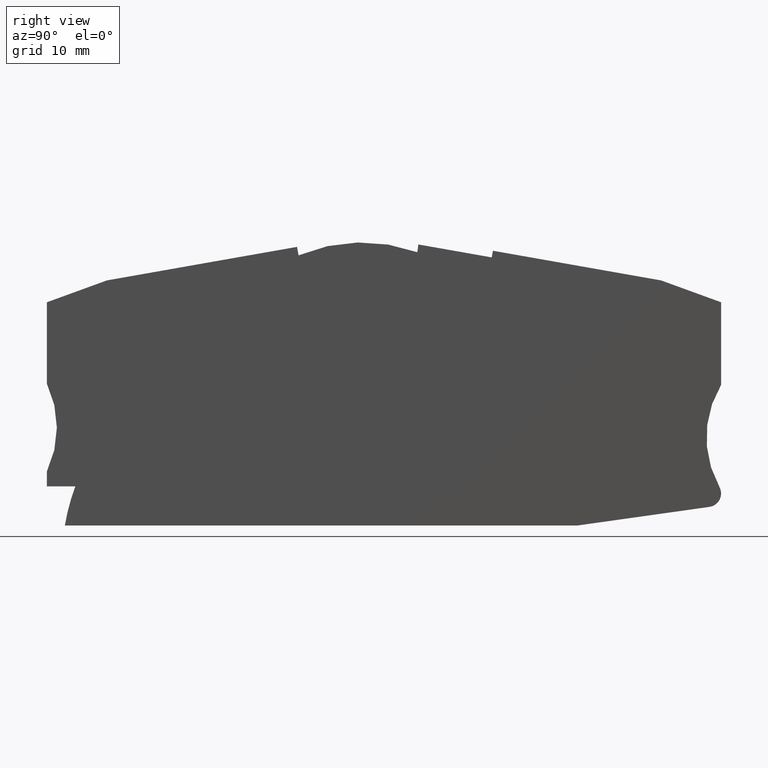
[diagram: clean part render]
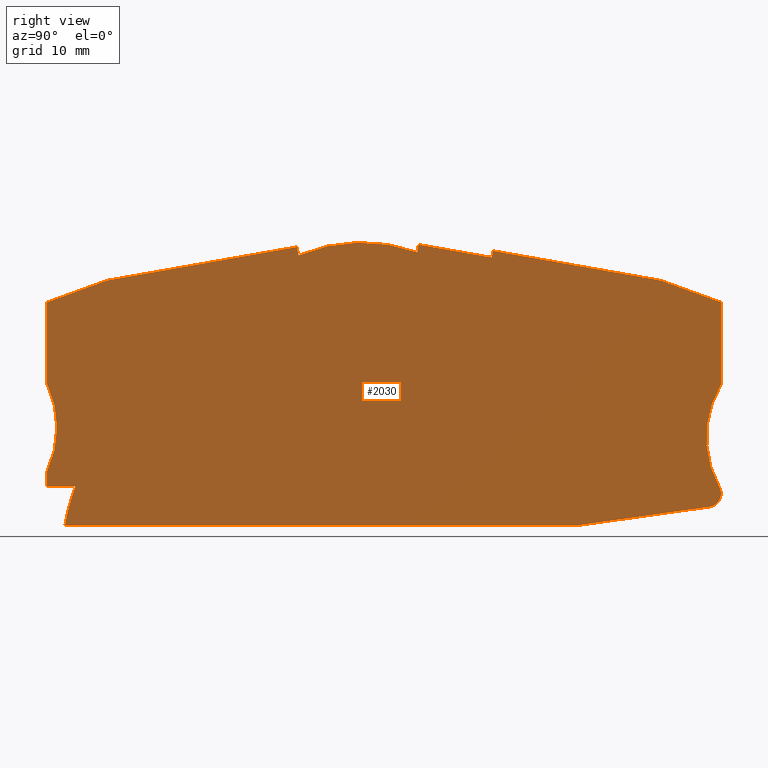
[diagram: same view with one face highlighted and labeled with its STEP entity id]
A machine part, right view. The second image highlights one B-rep face of the part: STEP entity #2030.
In plain terms, the highlighted planar face has unit normal (-1, -0, -0).
Its self-contained STEP definition (entity closure, byte-faithful):
#200=CARTESIAN_POINT('',(-13.3272534839325,-73.9280653286887,
125.749999999974));
#210=VERTEX_POINT('',#200);
#240=CARTESIAN_POINT('',(51.6290292403111,-73.9280653286887,
125.750000000013));
#250=DIRECTION('',(-1.,0.,-6.03432729529515E-13));
#260=VECTOR('',#250,1.);
#270=LINE('',#240,#260);
#280=CARTESIAN_POINT('',(62.5276099617414,-73.9280653286887,
125.75000000002));
#290=VERTEX_POINT('',#280);
#300=EDGE_CURVE('',#290,#210,#270,.T.);
#480=CARTESIAN_POINT('',(60.1205879999577,-50.3933440000951,
125.750000000036));
#490=DIRECTION('',(6.03432729529515E-13,7.59071191710367E-13,-1.));
#500=DIRECTION('',(-1.,0.,-6.03432729529515E-13));
#510=AXIS2_PLACEMENT_3D('',#480,#490,#500);
#520=PLANE('',#510);
#530=CARTESIAN_POINT('',(51.6290292403111,-34.5553054080874,
125.750000000043));
#540=DIRECTION('',(0.984807753012213,-0.173648177666904,
4.62453901302037E-13));
#550=VECTOR('',#540,1.);
#560=LINE('',#530,#550);
#570=CARTESIAN_POINT('',(38.99381641264,-32.3273764795756,
125.750000000037));
#580=VERTEX_POINT('',#570);
#590=CARTESIAN_POINT('',(49.86000735476,-34.243379120201,
125.750000000042));
#600=VERTEX_POINT('',#590);
#610=EDGE_CURVE('',#580,#600,#560,.T.);
#620=ORIENTED_EDGE('',*,*,#610,.F.);
#630=CARTESIAN_POINT('',(42.8893596173484,-73.7758869043069,
125.750000000008));
#640=DIRECTION('',(0.173648177667083,0.984807753012181,
8.5232418851204E-13));
#650=VECTOR('',#640,1.);
#660=LINE('',#630,#650);
#670=CARTESIAN_POINT('',(50.0336555324318,-33.2585713671621,
125.750000000043));
#680=VERTEX_POINT('',#670);
#690=EDGE_CURVE('',#600,#680,#660,.T.);
#700=ORIENTED_EDGE('',*,*,#690,.F.);
#710=CARTESIAN_POINT('',(51.6290292403111,-33.539878796174,
125.750000000044));
#720=DIRECTION('',(-0.984807753012221,0.173648177666859,
-4.62453901302076E-13));
#730=VECTOR('',#720,1.);
#740=LINE('',#710,#730);
#750=CARTESIAN_POINT('',(74.9146995439338,-37.6457707345828,
125.750000000055));
#760=VERTEX_POINT('',#750);
#770=EDGE_CURVE('',#760,#680,#740,.T.);
#780=ORIENTED_EDGE('',*,*,#770,.T.);
#790=CARTESIAN_POINT('',(51.6290292403111,-29.1704798592096,
125.750000000047));
#800=DIRECTION('',(-0.939692620786971,0.34202014332275,
-3.07423645299275E-13));
#810=VECTOR('',#800,1.);
#820=LINE('',#790,#810);
#830=CARTESIAN_POINT('',(83.8152812045608,-40.8853175266754,
125.750000000057));
#840=VERTEX_POINT('',#830);
#850=EDGE_CURVE('',#840,#760,#820,.T.);
#860=ORIENTED_EDGE('',*,*,#850,.T.);
#870=CARTESIAN_POINT('',(83.8152812046628,-73.7758869043069,
125.750000000033));
#880=DIRECTION('',(-3.1022961977106E-12,1.,7.59071191708495E-13));
#890=VECTOR('',#880,1.);
#900=LINE('',#870,#890);
#910=CARTESIAN_POINT('',(83.8152812045986,-53.0960397776546,
125.750000000048));
#920=VERTEX_POINT('',#910);
#930=EDGE_CURVE('',#920,#840,#900,.T.);
#940=ORIENTED_EDGE('',*,*,#930,.T.);
#950=CARTESIAN_POINT('',(96.6417739742854,-60.8729982595484,
125.75000000005));
#960=DIRECTION('',(-6.03432729529515E-13,-7.59071191710367E-13,1.));
#970=DIRECTION('',(1.,6.20886675406309E-12,6.03432729534228E-13));
#980=AXIS2_PLACEMENT_3D('',#950,#960,#970);
#990=CIRCLE('',#980,14.9999999999975);
#1000=CARTESIAN_POINT('',(83.5595744610592,-68.2116667965563,
125.750000000037));
#1010=VERTEX_POINT('',#1000);
#1020=EDGE_CURVE('',#920,#1010,#990,.T.);
#1030=ORIENTED_EDGE('',*,*,#1020,.F.);
#1040=CARTESIAN_POINT('',(81.8152811926287,-69.1901559348242,
125.750000000035));
#1050=DIRECTION('',(-6.03432729529515E-13,-7.59071191710367E-13,1.));
#1060=DIRECTION('',(1.,-1.86201136935918E-24,6.03432729529515E-13));
#1070=AXIS2_PLACEMENT_3D('',#1040,#1050,#1060);
#1080=CIRCLE('',#1070,2.);
#1090=CARTESIAN_POINT('',(82.0943766377503,-71.1705866285149,
125.750000000033));
#1100=VERTEX_POINT('',#1090);
#1110=EDGE_CURVE('',#1100,#1010,#1080,.T.);
#1120=ORIENTED_EDGE('',*,*,#1110,.T.);
#1130=CARTESIAN_POINT('',(51.6290292403111,-75.4639656999217,
125.750000000012));
#1140=DIRECTION('',(0.990215346845371,0.139547722560786,
7.03455005633601E-13));
#1150=VECTOR('',#1140,1.);
#1160=LINE('',#1130,#1150);
#1170=EDGE_CURVE('',#290,#1100,#1160,.T.);
#1180=ORIENTED_EDGE('',*,*,#1170,.T.);
#1190=ORIENTED_EDGE('',*,*,#300,.F.);
#1200=CARTESIAN_POINT('',(18.3152811806622,-79.3280653286815,
125.749999999989));
#1210=DIRECTION('',(-6.03432729529515E-13,-7.59071191710367E-13,1.));
#1220=DIRECTION('',(1.,-4.27713420242861E-14,6.03432729529483E-13));
#1230=AXIS2_PLACEMENT_3D('',#1200,#1210,#1220);
#1240=CIRCLE('',#1230,32.1);
#1250=CARTESIAN_POINT('',(-11.7674381113161,-68.1280653286799,
125.749999999979));
#1260=VERTEX_POINT('',#1250);
#1270=EDGE_CURVE('',#1260,#210,#1240,.T.);
#1280=ORIENTED_EDGE('',*,*,#1270,.T.);
#1290=CARTESIAN_POINT('',(51.6290292403111,-68.128065328684,
125.750000000017));
#1300=DIRECTION('',(1.,-6.41431352477815E-14,6.03432729529466E-13));
#1310=VECTOR('',#1300,1.);
#1320=LINE('',#1290,#1310);
#1330=CARTESIAN_POINT('',(-15.9847188194089,-68.1280653286797,
125.749999999977));
#1340=VERTEX_POINT('',#1330);
#1350=EDGE_CURVE('',#1340,#1260,#1320,.T.);
#1360=ORIENTED_EDGE('',*,*,#1350,.T.);
#1370=CARTESIAN_POINT('',(-15.9847188194265,-73.7758869043069,
125.749999999972));
#1380=DIRECTION('',(-3.10598768926643E-12,-1.,-7.59071191712242E-13));
#1390=VECTOR('',#1380,1.);
#1400=LINE('',#1370,#1390);
#1410=CARTESIAN_POINT('',(-15.9847188194021,-65.928065328636,
125.749999999978));
#1420=VERTEX_POINT('',#1410);
#1430=EDGE_CURVE('',#1420,#1340,#1400,.T.);
#1440=ORIENTED_EDGE('',*,*,#1430,.T.);
#1450=CARTESIAN_POINT('',(-29.503224653977,-59.4280653285926,
125.749999999975));
#1460=DIRECTION('',(-6.03432729529515E-13,-7.59071191710367E-13,1.));
#1470=DIRECTION('',(1.,-3.108041601862E-12,6.03432729527156E-13));
#1480=AXIS2_PLACEMENT_3D('',#1450,#1460,#1470);
#1490=CIRCLE('',#1480,15.);
#1500=CARTESIAN_POINT('',(-15.9847188194686,-52.928065328411,
125.749999999988));
#1510=VERTEX_POINT('',#1500);
#1520=EDGE_CURVE('',#1420,#1510,#1490,.T.);
#1530=ORIENTED_EDGE('',*,*,#1520,.F.);
#1540=CARTESIAN_POINT('',(-15.9847188195332,-73.7758869043069,
125.749999999972));
#1550=DIRECTION('',(-3.10232395328517E-12,-1.,-7.5907119171224E-13));
#1560=VECTOR('',#1550,1.);
#1570=LINE('',#1540,#1560);
#1580=CARTESIAN_POINT('',(-15.9847188194312,-40.8853175266537,
125.749999999997));
#1590=VERTEX_POINT('',#1580);
#1600=EDGE_CURVE('',#1590,#1510,#1570,.T.);
#1610=ORIENTED_EDGE('',*,*,#1600,.T.);
#1620=CARTESIAN_POINT('',(51.6290292403111,-16.2759258059711,
125.750000000057));
#1630=DIRECTION('',(-0.939692620786971,-0.34202014332275,
-8.26658920861176E-13));
#1640=VECTOR('',#1630,1.);
#1650=LINE('',#1620,#1640);
#1660=CARTESIAN_POINT('',(-7.08413715914052,-37.6457707346835,
125.750000000005));
#1670=VERTEX_POINT('',#1660);
#1680=EDGE_CURVE('',#1670,#1590,#1650,.T.);
#1690=ORIENTED_EDGE('',*,*,#1680,.T.);
#1700=CARTESIAN_POINT('',(51.6290292403111,-27.2930553756389,
125.750000000048));
#1710=DIRECTION('',(-0.984807753012221,-0.173648177666859,
-7.26076559621909E-13));
#1720=VECTOR('',#1710,1.);
#1730=LINE('',#1700,#1720);
#1740=CARTESIAN_POINT('',(21.0467726849628,-32.6855323372928,
125.750000000026));
#1750=VERTEX_POINT('',#1740);
#1760=EDGE_CURVE('',#1750,#1670,#1730,.T.);
#1770=ORIENTED_EDGE('',*,*,#1760,.T.);
#1780=CARTESIAN_POINT('',(28.2921108420021,-73.7758869043069,
125.749999999999));
#1790=DIRECTION('',(0.173648177666871,-0.984807753012219,
-6.42754200857248E-13));
#1800=VECTOR('',#1790,1.);
#1810=LINE('',#1780,#1800);
#1820=CARTESIAN_POINT('',(21.267417926259,-33.9368736828415,
125.750000000025));
#1830=VERTEX_POINT('',#1820);
#1840=EDGE_CURVE('',#1750,#1830,#1810,.T.);
#1850=ORIENTED_EDGE('',*,*,#1840,.F.);
#1860=CARTESIAN_POINT('',(30.6491082792668,-56.0272309936748,
125.750000000014));
#1870=DIRECTION('',(-6.03432729529515E-13,-7.59071191710367E-13,1.));
#1880=DIRECTION('',(1.,1.14076930884894E-25,6.03432729529515E-13));
#1890=AXIS2_PLACEMENT_3D('',#1860,#1870,#1880);
#1900=CIRCLE('',#1890,24.);
#1910=CARTESIAN_POINT('',(38.8544495174018,-33.4734646748143,
125.750000000036));
#1920=VERTEX_POINT('',#1910);
#1930=EDGE_CURVE('',#1920,#1830,#1900,.T.);
#1940=ORIENTED_EDGE('',*,*,#1930,.T.);
#1950=CARTESIAN_POINT('',(33.9535845752113,-73.7758869043069,
125.750000000002));
#1960=DIRECTION('',(0.120713020131186,0.992687446667282,
8.26362630365169E-13));
#1970=VECTOR('',#1960,1.);
#1980=LINE('',#1950,#1970);
#1990=EDGE_CURVE('',#1920,#580,#1980,.T.);
#2000=ORIENTED_EDGE('',*,*,#1990,.F.);
#2010=EDGE_LOOP('',(#2000,#1940,#1850,#1770,#1690,#1610,#1530,#1440,
#1360,#1280,#1190,#1180,#1120,#1030,#940,#860,#780,#700,#620));
#2020=FACE_OUTER_BOUND('',#2010,.T.);
#2030=ADVANCED_FACE('',(#2020),#520,.F.);